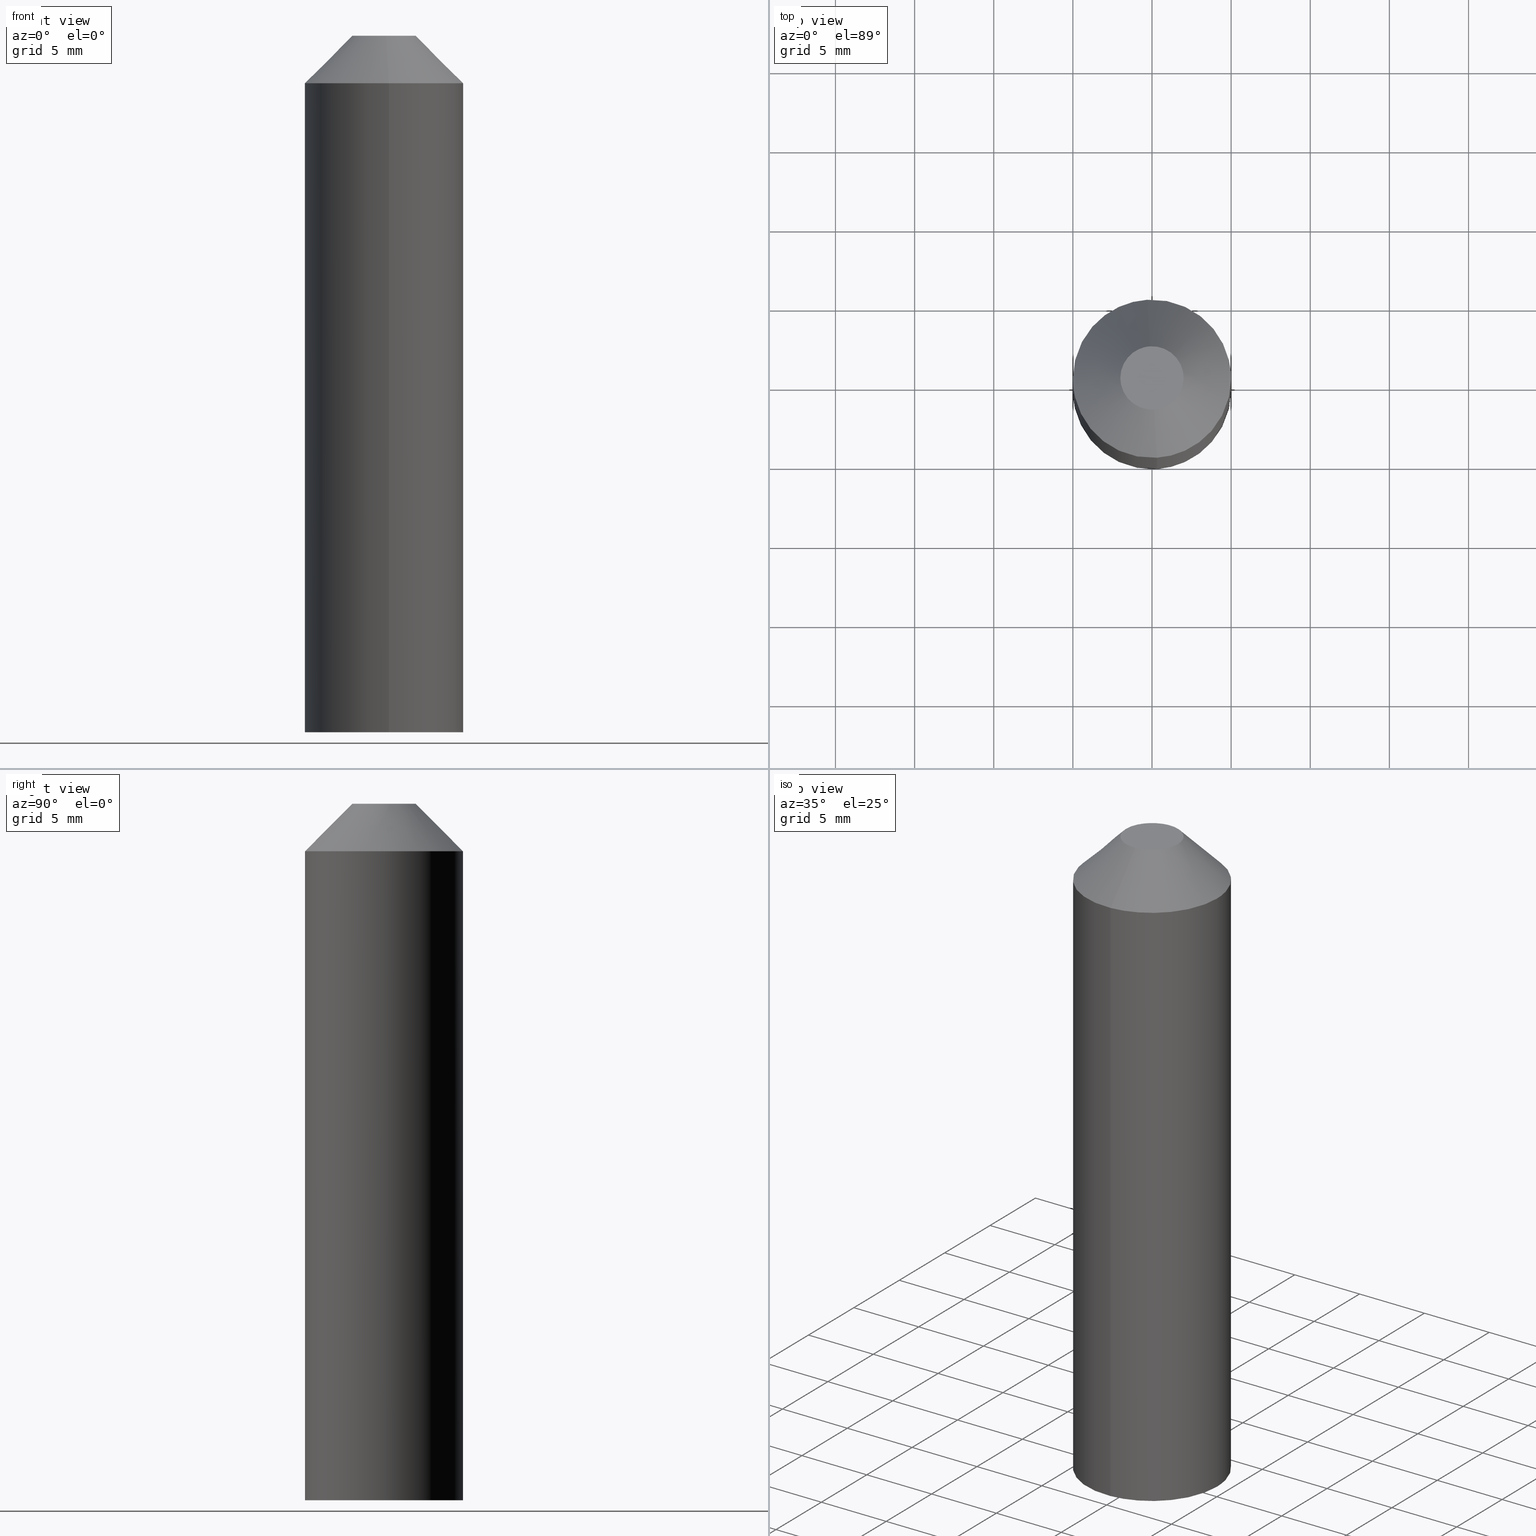
[diagram: canonical four-view strip — front | top / right | iso, engineering-drawing reading convention]
A machine part, canonical four-view strip (front | top / right | iso — engineering-drawing reading convention). The complete STEP part file that produces these views, byte-faithful:
ISO-10303-21;
HEADER;
/****************************************************************
 * Generated by software with PDE/Lib inside                    *
 * PDElib Version v5.1, created Sun 05/01/2005                  *
 * International Technegroup Inc. (www.iti-oh.com)              *
 ****************************************************************/
FILE_DESCRIPTION((''),'2;1');
FILE_NAME('','2007-04-02T16:51:42',(''),(''),'','CADfix','');
FILE_SCHEMA(('AUTOMOTIVE_DESIGN { 1 0 10303 214 1 1 1 1 }'));
ENDSEC;
DATA;
#5=CARTESIAN_POINT('',(2.199799992247224,-2.199750737069184,44.0));
#6=CARTESIAN_POINT('',(-2.199800099535584,-2.199750737069184,44.0));
#7=CARTESIAN_POINT('',(2.199799992247224,2.199750701306397,44.0));
#8=CARTESIAN_POINT('',(-2.199800099535584,2.199750701306397,44.0));
#9=B_SPLINE_SURFACE_WITH_KNOTS('',1,1,((#5,#7),(#6,#8)),.UNSPECIFIED.,.F.,.F.,.U.,(2,2),(2,2),(0.0,4.399600091782808),(0.0,4.399501438375581),.UNSPECIFIED.);
#10=CARTESIAN_POINT('',(0.122097079354286,-1.996269596863963,43.999999999962427));
#11=VERTEX_POINT('',#10);
#12=CARTESIAN_POINT('',(-2.0,0.0,44.0));
#13=VERTEX_POINT('',#12);
#14=CARTESIAN_POINT('',(0.122097079354286,-1.996269596863963,43.999999999962427));
#15=CARTESIAN_POINT('',(0.061105526740973,-2.000000000036956,43.999999999962967));
#16=CARTESIAN_POINT('',(2.224938E-012,-2.000000000036383,43.999999999963542));
#17=CARTESIAN_POINT('',(-1.999999999998922,-2.000000000017635,43.999999999982329));
#18=CARTESIAN_POINT('',(-2.0,0.0,44.0));
#26=(BOUNDED_CURVE()B_SPLINE_CURVE(2,(#14,#15,#16,#17,#18),.UNSPECIFIED.,.F.,.U.)B_SPLINE_CURVE_WITH_KNOTS((3,2,3),(0.739332962217570,0.750000000000000,1.0),.UNSPECIFIED.)CURVE()GEOMETRIC_REPRESENTATION_ITEM()RATIONAL_B_SPLINE_CURVE((0.976072041620911,0.987502787874797,1.0,0.707106781186548,1.0))REPRESENTATION_ITEM(''));
#27=EDGE_CURVE('',#11,#13,#26,.T.);
#28=ORIENTED_EDGE('',*,*,#27,.F.);
#29=CARTESIAN_POINT('',(2.0,0.0,44.0));
#30=VERTEX_POINT('',#29);
#31=CARTESIAN_POINT('',(2.0,0.0,44.0));
#32=CARTESIAN_POINT('',(2.000000000001146,-1.881412133563603,43.999999999981220));
#33=CARTESIAN_POINT('',(0.122097079354286,-1.996269596863963,43.999999999962427));
#41=(BOUNDED_CURVE()B_SPLINE_CURVE(2,(#31,#32,#33),.UNSPECIFIED.,.F.,.U.)B_SPLINE_CURVE_WITH_KNOTS((3,3),(0.500000000000000,0.739332962217570),.UNSPECIFIED.)CURVE()GEOMETRIC_REPRESENTATION_ITEM()RATIONAL_B_SPLINE_CURVE((1.0,0.719603993311751,0.976072041620911))REPRESENTATION_ITEM(''));
#42=EDGE_CURVE('',#30,#11,#41,.T.);
#43=ORIENTED_EDGE('',*,*,#42,.F.);
#44=CARTESIAN_POINT('',(-0.122097079354286,1.996269596863963,43.999999999962427));
#45=VERTEX_POINT('',#44);
#46=CARTESIAN_POINT('',(-0.122097079354286,1.996269596863963,43.999999999962427));
#47=CARTESIAN_POINT('',(-0.061105526740973,2.000000000036956,43.999999999962967));
#48=CARTESIAN_POINT('',(-2.225261E-012,2.000000000036383,43.999999999963549));
#49=CARTESIAN_POINT('',(1.999999999998921,2.000000000017635,43.999999999982329));
#50=CARTESIAN_POINT('',(2.0,0.0,44.0));
#58=(BOUNDED_CURVE()B_SPLINE_CURVE(2,(#46,#47,#48,#49,#50),.UNSPECIFIED.,.F.,.U.)B_SPLINE_CURVE_WITH_KNOTS((3,2,3),(0.239332962217570,0.250000000000000,0.500000000000000),.UNSPECIFIED.)CURVE()GEOMETRIC_REPRESENTATION_ITEM()RATIONAL_B_SPLINE_CURVE((0.976072041620911,0.987502787874797,1.0,0.707106781186548,1.0))REPRESENTATION_ITEM(''));
#59=EDGE_CURVE('',#45,#30,#58,.T.);
#60=ORIENTED_EDGE('',*,*,#59,.F.);
#61=CARTESIAN_POINT('',(-2.0,0.0,44.0));
#62=CARTESIAN_POINT('',(-2.000000000001146,1.881412133563603,43.999999999981220));
#63=CARTESIAN_POINT('',(-0.122097079354286,1.996269596863963,43.999999999962427));
#71=(BOUNDED_CURVE()B_SPLINE_CURVE(2,(#61,#62,#63),.UNSPECIFIED.,.F.,.U.)B_SPLINE_CURVE_WITH_KNOTS((3,3),(0.0,0.239332962217570),.UNSPECIFIED.)CURVE()GEOMETRIC_REPRESENTATION_ITEM()RATIONAL_B_SPLINE_CURVE((1.0,0.719603993311751,0.976072041620911))REPRESENTATION_ITEM(''));
#72=EDGE_CURVE('',#13,#45,#71,.T.);
#73=ORIENTED_EDGE('',*,*,#72,.F.);
#74=EDGE_LOOP('',(#28,#43,#60,#73));
#75=FACE_OUTER_BOUND('',#74,.T.);
#76=ADVANCED_FACE('',(#75),#9,.F.);
#77=CARTESIAN_POINT('',(-0.117518438604599,1.921409486962084,44.075000000000010));
#78=CARTESIAN_POINT('',(1.803891048357485,2.038927925566683,44.075000000000010));
#79=CARTESIAN_POINT('',(1.921409486962084,0.117518438604599,44.075000000000010));
#80=CARTESIAN_POINT('',(2.038927925566683,-1.803891048357485,44.075000000000010));
#81=CARTESIAN_POINT('',(0.117518438604599,-1.921409486962084,44.075000000000010));
#82=CARTESIAN_POINT('',(-0.309935804151027,5.067405604738020,40.923124999999992));
#83=CARTESIAN_POINT('',(4.757469800586993,5.377341408889047,40.923124999999992));
#84=CARTESIAN_POINT('',(5.067405604738020,0.309935804151027,40.923124999999992));
#85=CARTESIAN_POINT('',(5.377341408889047,-4.757469800586993,40.923124999999992));
#86=CARTESIAN_POINT('',(0.309935804151027,-5.067405604738020,40.923124999999992));
#94=(BOUNDED_SURFACE()B_SPLINE_SURFACE(2,1,((#77,#82),(#78,#83),(#79,#84),(#80,#85),(#81,#86)),.UNSPECIFIED.,.F.,.F.,.U.)B_SPLINE_SURFACE_WITH_KNOTS((3,2,3),(2,2),(0.0,8.411641917891634,16.823283835783268),(0.0,4.457424371904722),.UNSPECIFIED.)GEOMETRIC_REPRESENTATION_ITEM()RATIONAL_B_SPLINE_SURFACE(((1.0,1.0),(0.707106781186548,0.707106781186548),(1.0,1.0),(0.707106781186548,0.707106781186548),(1.0,1.0)))REPRESENTATION_ITEM('')SURFACE());
#95=CARTESIAN_POINT('',(-0.305242697718337,4.990673992112464,40.999999999988383));
#96=VERTEX_POINT('',#95);
#97=CARTESIAN_POINT('',(5.0,0.0,41.0));
#98=VERTEX_POINT('',#97);
#99=CARTESIAN_POINT('',(-0.305242697718337,4.990673992112465,40.999999999988383));
#100=CARTESIAN_POINT('',(-0.152763816494045,5.000000000008354,40.999999999988546));
#101=CARTESIAN_POINT('',(4.205639E-011,5.000000000008225,40.999999999988717));
#102=CARTESIAN_POINT('',(5.000000000020386,5.000000000003987,40.999999999994543));
#103=CARTESIAN_POINT('',(5.0,0.0,41.0));
#111=(BOUNDED_CURVE()B_SPLINE_CURVE(2,(#99,#100,#101,#102,#103),.UNSPECIFIED.,.F.,.U.)B_SPLINE_CURVE_WITH_KNOTS((3,2,3),(0.239332962238947,0.250000000000000,0.500000000000000),.UNSPECIFIED.)CURVE()GEOMETRIC_REPRESENTATION_ITEM()RATIONAL_B_SPLINE_CURVE((0.976072041666726,0.987502787899842,1.0,0.707106781186548,1.0))REPRESENTATION_ITEM(''));
#112=EDGE_CURVE('',#96,#98,#111,.T.);
#113=ORIENTED_EDGE('',*,*,#112,.F.);
#114=CARTESIAN_POINT('',(-0.122097079354286,1.996269596863963,43.999999999962427));
#115=CARTESIAN_POINT('',(-0.305242697762389,4.990673992115594,40.999999999988383));
#116=QUASI_UNIFORM_CURVE('',1,(#114,#115),.UNSPECIFIED.,.F.,.U.);
#117=EDGE_CURVE('',#45,#96,#116,.T.);
#118=ORIENTED_EDGE('',*,*,#117,.F.);
#119=ORIENTED_EDGE('',*,*,#59,.T.);
#120=ORIENTED_EDGE('',*,*,#42,.T.);
#121=CARTESIAN_POINT('',(0.305242697718337,-4.990673992112464,40.999999999988383));
#122=VERTEX_POINT('',#121);
#123=CARTESIAN_POINT('',(0.122097079354286,-1.996269596863963,43.999999999962427));
#124=CARTESIAN_POINT('',(0.305242697762388,-4.990673992115595,40.999999999988383));
#125=QUASI_UNIFORM_CURVE('',1,(#123,#124),.UNSPECIFIED.,.F.,.U.);
#126=EDGE_CURVE('',#11,#122,#125,.T.);
#127=ORIENTED_EDGE('',*,*,#126,.T.);
#128=CARTESIAN_POINT('',(5.0,0.0,41.0));
#129=CARTESIAN_POINT('',(4.999999999978329,-4.703530334450192,40.999999999994202));
#130=CARTESIAN_POINT('',(0.305242697718336,-4.990673992112466,40.999999999988376));
#138=(BOUNDED_CURVE()B_SPLINE_CURVE(2,(#128,#129,#130),.UNSPECIFIED.,.F.,.U.)B_SPLINE_CURVE_WITH_KNOTS((3,3),(0.500000000000000,0.739332962238947),.UNSPECIFIED.)CURVE()GEOMETRIC_REPRESENTATION_ITEM()RATIONAL_B_SPLINE_CURVE((1.0,0.719603993286706,0.976072041666726))REPRESENTATION_ITEM(''));
#139=EDGE_CURVE('',#98,#122,#138,.T.);
#140=ORIENTED_EDGE('',*,*,#139,.F.);
#141=EDGE_LOOP('',(#113,#118,#119,#120,#127,#140));
#142=FACE_OUTER_BOUND('',#141,.T.);
#143=ADVANCED_FACE('',(#142),#94,.T.);
#144=CARTESIAN_POINT('',(0.117518438604599,-1.921409486962084,44.075000000000010));
#145=CARTESIAN_POINT('',(-1.803891048357485,-2.038927925566683,44.075000000000010));
#146=CARTESIAN_POINT('',(-1.921409486962084,-0.117518438604599,44.075000000000010));
#147=CARTESIAN_POINT('',(-2.038927925566683,1.803891048357485,44.075000000000010));
#148=CARTESIAN_POINT('',(-0.117518438604599,1.921409486962084,44.075000000000010));
#149=CARTESIAN_POINT('',(0.309935804151027,-5.067405604738020,40.923124999999992));
#150=CARTESIAN_POINT('',(-4.757469800586993,-5.377341408889047,40.923124999999992));
#151=CARTESIAN_POINT('',(-5.067405604738020,-0.309935804151027,40.923124999999992));
#152=CARTESIAN_POINT('',(-5.377341408889047,4.757469800586993,40.923124999999992));
#153=CARTESIAN_POINT('',(-0.309935804151027,5.067405604738020,40.923124999999992));
#161=(BOUNDED_SURFACE()B_SPLINE_SURFACE(2,1,((#144,#149),(#145,#150),(#146,#151),(#147,#152),(#148,#153)),.UNSPECIFIED.,.F.,.F.,.U.)B_SPLINE_SURFACE_WITH_KNOTS((3,2,3),(2,2),(0.0,8.411641917891634,16.823283835783268),(0.0,4.457424371904722),.UNSPECIFIED.)GEOMETRIC_REPRESENTATION_ITEM()RATIONAL_B_SPLINE_SURFACE(((1.0,1.0),(0.707106781186548,0.707106781186548),(1.0,1.0),(0.707106781186548,0.707106781186548),(1.0,1.0)))REPRESENTATION_ITEM('')SURFACE());
#162=CARTESIAN_POINT('',(-5.0,0.0,41.0));
#163=VERTEX_POINT('',#162);
#164=CARTESIAN_POINT('',(-5.0,0.0,41.0));
#165=CARTESIAN_POINT('',(-4.999999999978329,4.703530334450193,40.999999999994188));
#166=CARTESIAN_POINT('',(-0.305242697718337,4.990673992112465,40.999999999988383));
#174=(BOUNDED_CURVE()B_SPLINE_CURVE(2,(#164,#165,#166),.UNSPECIFIED.,.F.,.U.)B_SPLINE_CURVE_WITH_KNOTS((3,3),(0.0,0.239332962238947),.UNSPECIFIED.)CURVE()GEOMETRIC_REPRESENTATION_ITEM()RATIONAL_B_SPLINE_CURVE((1.0,0.719603993286706,0.976072041666726))REPRESENTATION_ITEM(''));
#175=EDGE_CURVE('',#163,#96,#174,.T.);
#176=ORIENTED_EDGE('',*,*,#175,.F.);
#177=CARTESIAN_POINT('',(0.305242697718336,-4.990673992112466,40.999999999988376));
#178=CARTESIAN_POINT('',(0.152763816494045,-5.000000000008352,40.999999999988532));
#179=CARTESIAN_POINT('',(-4.205763E-011,-5.000000000008224,40.999999999988717));
#180=CARTESIAN_POINT('',(-5.000000000020386,-5.000000000003985,40.999999999994543));
#181=CARTESIAN_POINT('',(-5.0,0.0,41.0));
#189=(BOUNDED_CURVE()B_SPLINE_CURVE(2,(#177,#178,#179,#180,#181),.UNSPECIFIED.,.F.,.U.)B_SPLINE_CURVE_WITH_KNOTS((3,2,3),(0.739332962238947,0.750000000000000,1.0),.UNSPECIFIED.)CURVE()GEOMETRIC_REPRESENTATION_ITEM()RATIONAL_B_SPLINE_CURVE((0.976072041666726,0.987502787899842,1.0,0.707106781186548,1.0))REPRESENTATION_ITEM(''));
#190=EDGE_CURVE('',#122,#163,#189,.T.);
#191=ORIENTED_EDGE('',*,*,#190,.F.);
#192=ORIENTED_EDGE('',*,*,#126,.F.);
#193=ORIENTED_EDGE('',*,*,#27,.T.);
#194=ORIENTED_EDGE('',*,*,#72,.T.);
#195=ORIENTED_EDGE('',*,*,#117,.T.);
#196=EDGE_LOOP('',(#176,#191,#192,#193,#194,#195));
#197=FACE_OUTER_BOUND('',#196,.T.);
#198=ADVANCED_FACE('',(#197),#161,.T.);
#199=CARTESIAN_POINT('',(-4.344604984688267,-4.344507779871246,40.0));
#200=CARTESIAN_POINT('',(4.344605196582780,-4.344507779871246,40.0));
#201=CARTESIAN_POINT('',(-4.344604984688267,4.344507638608237,40.0));
#202=CARTESIAN_POINT('',(4.344605196582780,4.344507638608237,40.0));
#203=B_SPLINE_SURFACE_WITH_KNOTS('',1,1,((#199,#201),(#200,#202)),.UNSPECIFIED.,.F.,.F.,.U.,(2,2),(2,2),(0.0,8.689210181271047),(0.0,8.689015418479482),.UNSPECIFIED.);
#204=CARTESIAN_POINT('',(-3.950000000000000,0.0,40.0));
#205=VERTEX_POINT('',#204);
#206=CARTESIAN_POINT('',(-0.241135044313204,3.942632862740225,39.999999999999993));
#207=VERTEX_POINT('',#206);
#208=CARTESIAN_POINT('',(-3.950000000000000,0.0,40.0));
#209=CARTESIAN_POINT('',(-3.949999999999827,3.715795278170311,40.000000000000014));
#210=CARTESIAN_POINT('',(-0.241135044313204,3.942632862740226,39.999999999999979));
#218=(BOUNDED_CURVE()B_SPLINE_CURVE(2,(#208,#209,#210),.UNSPECIFIED.,.F.,.U.)B_SPLINE_CURVE_WITH_KNOTS((3,3),(0.0,0.239333254887726),.UNSPECIFIED.)CURVE()GEOMETRIC_REPRESENTATION_ITEM()RATIONAL_B_SPLINE_CURVE((1.0,0.719603650427333,0.976072668869571))REPRESENTATION_ITEM(''));
#219=EDGE_CURVE('',#205,#207,#218,.T.);
#220=ORIENTED_EDGE('',*,*,#219,.T.);
#221=CARTESIAN_POINT('',(3.950000000000000,0.0,40.0));
#222=VERTEX_POINT('',#221);
#223=CARTESIAN_POINT('',(-0.241135044313204,3.942632862740226,39.999999999999979));
#224=CARTESIAN_POINT('',(-0.120680062230140,3.949999999994410,39.999999999999986));
#225=CARTESIAN_POINT('',(3.368476E-013,3.949999999994498,39.999999999999993));
#226=CARTESIAN_POINT('',(3.950000000000164,3.949999999997333,40.0));
#227=CARTESIAN_POINT('',(3.950000000000000,0.0,40.0));
#235=(BOUNDED_CURVE()B_SPLINE_CURVE(2,(#223,#224,#225,#226,#227),.UNSPECIFIED.,.F.,.U.)B_SPLINE_CURVE_WITH_KNOTS((3,2,3),(0.239333254887726,0.250000000000000,0.500000000000000),.UNSPECIFIED.)CURVE()GEOMETRIC_REPRESENTATION_ITEM()RATIONAL_B_SPLINE_CURVE((0.976072668869571,0.987503130759214,1.0,0.707106781186547,1.0))REPRESENTATION_ITEM(''));
#236=EDGE_CURVE('',#207,#222,#235,.T.);
#237=ORIENTED_EDGE('',*,*,#236,.T.);
#238=CARTESIAN_POINT('',(0.241135044313204,-3.942632862740226,39.999999999999993));
#239=VERTEX_POINT('',#238);
#240=CARTESIAN_POINT('',(3.950000000000000,0.0,40.0));
#241=CARTESIAN_POINT('',(3.949999999999827,-3.715795278170309,39.999999999999993));
#242=CARTESIAN_POINT('',(0.241135044313204,-3.942632862740226,39.999999999999979));
#250=(BOUNDED_CURVE()B_SPLINE_CURVE(2,(#240,#241,#242),.UNSPECIFIED.,.F.,.U.)B_SPLINE_CURVE_WITH_KNOTS((3,3),(0.500000000000000,0.739333254887726),.UNSPECIFIED.)CURVE()GEOMETRIC_REPRESENTATION_ITEM()RATIONAL_B_SPLINE_CURVE((1.0,0.719603650427333,0.976072668869571))REPRESENTATION_ITEM(''));
#251=EDGE_CURVE('',#222,#239,#250,.T.);
#252=ORIENTED_EDGE('',*,*,#251,.T.);
#253=CARTESIAN_POINT('',(0.241135044313204,-3.942632862740226,39.999999999999979));
#254=CARTESIAN_POINT('',(0.120680062230140,-3.949999999994410,39.999999999999993));
#255=CARTESIAN_POINT('',(-3.377095E-013,-3.949999999994497,39.999999999999993));
#256=CARTESIAN_POINT('',(-3.950000000000164,-3.949999999997332,40.0));
#257=CARTESIAN_POINT('',(-3.950000000000000,0.0,40.0));
#265=(BOUNDED_CURVE()B_SPLINE_CURVE(2,(#253,#254,#255,#256,#257),.UNSPECIFIED.,.F.,.U.)B_SPLINE_CURVE_WITH_KNOTS((3,2,3),(0.739333254887726,0.750000000000000,1.0),.UNSPECIFIED.)CURVE()GEOMETRIC_REPRESENTATION_ITEM()RATIONAL_B_SPLINE_CURVE((0.976072668869571,0.987503130759214,1.0,0.707106781186547,1.0))REPRESENTATION_ITEM(''));
#266=EDGE_CURVE('',#239,#205,#265,.T.);
#267=ORIENTED_EDGE('',*,*,#266,.T.);
#268=EDGE_LOOP('',(#220,#237,#252,#267));
#269=FACE_OUTER_BOUND('',#268,.T.);
#270=ADVANCED_FACE('',(#269),#203,.F.);
#271=CARTESIAN_POINT('',(-0.305242697674285,4.990673992109334,42.025000000000013));
#272=CARTESIAN_POINT('',(4.685431294435048,5.295916689783620,42.025000000000013));
#273=CARTESIAN_POINT('',(4.990673992109334,0.305242697674285,42.025000000000013));
#274=CARTESIAN_POINT('',(5.295916689783620,-4.685431294435048,42.025000000000013));
#275=CARTESIAN_POINT('',(0.305242697674285,-4.990673992109334,42.025000000000013));
#276=CARTESIAN_POINT('',(-0.305242697674285,4.990673992109334,-1.050625000000117));
#277=CARTESIAN_POINT('',(4.685431294435048,5.295916689783620,-1.050625000000117));
#278=CARTESIAN_POINT('',(4.990673992109334,0.305242697674285,-1.050625000000117));
#279=CARTESIAN_POINT('',(5.295916689783620,-4.685431294435048,-1.050625000000117));
#280=CARTESIAN_POINT('',(0.305242697674285,-4.990673992109334,-1.050625000000117));
#288=(BOUNDED_SURFACE()B_SPLINE_SURFACE(2,1,((#271,#276),(#272,#277),(#273,#278),(#274,#279),(#275,#280)),.UNSPECIFIED.,.F.,.F.,.U.)B_SPLINE_SURFACE_WITH_KNOTS((3,2,3),(2,2),(0.0,8.284271247461899,16.568542494923800),(0.0,43.075625000000130),.UNSPECIFIED.)GEOMETRIC_REPRESENTATION_ITEM()RATIONAL_B_SPLINE_SURFACE(((1.0,1.0),(0.707106781186548,0.707106781186548),(1.0,1.0),(0.707106781186548,0.707106781186548),(1.0,1.0)))REPRESENTATION_ITEM('')SURFACE());
#289=CARTESIAN_POINT('',(-0.305242697700495,4.990673992107730,-1.134648E-013));
#290=VERTEX_POINT('',#289);
#291=CARTESIAN_POINT('',(-0.305242697718337,4.990673992112464,40.999999999988383));
#292=CARTESIAN_POINT('',(-0.305242697700495,4.990673992107730,-1.134648E-013));
#293=QUASI_UNIFORM_CURVE('',1,(#291,#292),.UNSPECIFIED.,.F.,.U.);
#294=EDGE_CURVE('',#96,#290,#293,.T.);
#295=ORIENTED_EDGE('',*,*,#294,.F.);
#296=ORIENTED_EDGE('',*,*,#112,.T.);
#297=ORIENTED_EDGE('',*,*,#139,.T.);
#298=CARTESIAN_POINT('',(0.305242697700496,-4.990673992107731,-1.133588E-013));
#299=VERTEX_POINT('',#298);
#300=CARTESIAN_POINT('',(0.305242697718337,-4.990673992112464,40.999999999988383));
#301=CARTESIAN_POINT('',(0.305242697700496,-4.990673992107731,-1.133588E-013));
#302=QUASI_UNIFORM_CURVE('',1,(#300,#301),.UNSPECIFIED.,.F.,.U.);
#303=EDGE_CURVE('',#122,#299,#302,.T.);
#304=ORIENTED_EDGE('',*,*,#303,.T.);
#305=CARTESIAN_POINT('',(5.0,0.0,0.0));
#306=VERTEX_POINT('',#305);
#307=CARTESIAN_POINT('',(5.0,0.0,0.0));
#308=CARTESIAN_POINT('',(5.0,-4.703530334503724,-1.069459E-013));
#309=CARTESIAN_POINT('',(0.305242697700497,-4.990673992107731,-1.134748E-013));
#317=(BOUNDED_CURVE()B_SPLINE_CURVE(2,(#307,#308,#309),.UNSPECIFIED.,.F.,.U.)B_SPLINE_CURVE_WITH_KNOTS((3,3),(0.500000000000000,0.739332962241062),.UNSPECIFIED.)CURVE()GEOMETRIC_REPRESENTATION_ITEM()RATIONAL_B_SPLINE_CURVE((1.0,0.719603993284227,0.976072041671259))REPRESENTATION_ITEM(''));
#318=EDGE_CURVE('',#306,#299,#317,.T.);
#319=ORIENTED_EDGE('',*,*,#318,.F.);
#320=CARTESIAN_POINT('',(-0.305242697700495,4.990673992107732,-1.136868E-013));
#321=CARTESIAN_POINT('',(-0.152763816506087,5.0,-1.136868E-013));
#322=CARTESIAN_POINT('',(0.0,5.0,-1.136868E-013));
#323=CARTESIAN_POINT('',(5.000000000000001,5.000000000000001,-1.136868E-013));
#324=CARTESIAN_POINT('',(5.0,0.0,-1.136868E-013));
#332=(BOUNDED_CURVE()B_SPLINE_CURVE(2,(#320,#321,#322,#323,#324),.UNSPECIFIED.,.F.,.U.)B_SPLINE_CURVE_WITH_KNOTS((3,2,3),(0.239332962241062,0.250000000000000,0.500000000000000),.UNSPECIFIED.)CURVE()GEOMETRIC_REPRESENTATION_ITEM()RATIONAL_B_SPLINE_CURVE((0.976072041671260,0.987502787902320,1.0,0.707106781186548,1.0))REPRESENTATION_ITEM(''));
#333=EDGE_CURVE('',#290,#306,#332,.T.);
#334=ORIENTED_EDGE('',*,*,#333,.F.);
#335=EDGE_LOOP('',(#295,#296,#297,#304,#319,#334));
#336=FACE_OUTER_BOUND('',#335,.T.);
#337=ADVANCED_FACE('',(#336),#288,.T.);
#338=CARTESIAN_POINT('',(0.305242697674285,-4.990673992109334,42.025000000000013));
#339=CARTESIAN_POINT('',(-4.685431294435048,-5.295916689783620,42.025000000000013));
#340=CARTESIAN_POINT('',(-4.990673992109334,-0.305242697674285,42.025000000000013));
#341=CARTESIAN_POINT('',(-5.295916689783620,4.685431294435048,42.025000000000013));
#342=CARTESIAN_POINT('',(-0.305242697674285,4.990673992109334,42.025000000000013));
#343=CARTESIAN_POINT('',(0.305242697674285,-4.990673992109334,-1.050625000000117));
#344=CARTESIAN_POINT('',(-4.685431294435048,-5.295916689783620,-1.050625000000117));
#345=CARTESIAN_POINT('',(-4.990673992109334,-0.305242697674285,-1.050625000000117));
#346=CARTESIAN_POINT('',(-5.295916689783620,4.685431294435048,-1.050625000000117));
#347=CARTESIAN_POINT('',(-0.305242697674285,4.990673992109334,-1.050625000000117));
#355=(BOUNDED_SURFACE()B_SPLINE_SURFACE(2,1,((#338,#343),(#339,#344),(#340,#345),(#341,#346),(#342,#347)),.UNSPECIFIED.,.F.,.F.,.U.)B_SPLINE_SURFACE_WITH_KNOTS((3,2,3),(2,2),(0.0,8.284271247461899,16.568542494923800),(0.0,43.075625000000130),.UNSPECIFIED.)GEOMETRIC_REPRESENTATION_ITEM()RATIONAL_B_SPLINE_SURFACE(((1.0,1.0),(0.707106781186548,0.707106781186548),(1.0,1.0),(0.707106781186548,0.707106781186548),(1.0,1.0)))REPRESENTATION_ITEM('')SURFACE());
#356=ORIENTED_EDGE('',*,*,#294,.T.);
#357=CARTESIAN_POINT('',(-5.0,0.0,-1.136868E-013));
#358=VERTEX_POINT('',#357);
#359=CARTESIAN_POINT('',(-5.0,0.0,-1.136868E-013));
#360=CARTESIAN_POINT('',(-4.999999999999998,4.703530334503726,-1.136868E-013));
#361=CARTESIAN_POINT('',(-0.305242697700495,4.990673992107732,-1.136868E-013));
#369=(BOUNDED_CURVE()B_SPLINE_CURVE(2,(#359,#360,#361),.UNSPECIFIED.,.F.,.U.)B_SPLINE_CURVE_WITH_KNOTS((3,3),(0.0,0.239332962241062),.UNSPECIFIED.)CURVE()GEOMETRIC_REPRESENTATION_ITEM()RATIONAL_B_SPLINE_CURVE((1.0,0.719603993284227,0.976072041671260))REPRESENTATION_ITEM(''));
#370=EDGE_CURVE('',#358,#290,#369,.T.);
#371=ORIENTED_EDGE('',*,*,#370,.F.);
#372=CARTESIAN_POINT('',(0.305242697700497,-4.990673992107731,-1.134748E-013));
#373=CARTESIAN_POINT('',(0.152763816506087,-4.999999999999999,-1.136868E-013));
#374=CARTESIAN_POINT('',(0.0,-5.0,-1.136868E-013));
#375=CARTESIAN_POINT('',(-5.000000000000001,-5.000000000000001,-1.136868E-013));
#376=CARTESIAN_POINT('',(-5.0,0.0,-1.136868E-013));
#384=(BOUNDED_CURVE()B_SPLINE_CURVE(2,(#372,#373,#374,#375,#376),.UNSPECIFIED.,.F.,.U.)B_SPLINE_CURVE_WITH_KNOTS((3,2,3),(0.739332962241062,0.750000000000000,1.0),.UNSPECIFIED.)CURVE()GEOMETRIC_REPRESENTATION_ITEM()RATIONAL_B_SPLINE_CURVE((0.976072041671259,0.987502787902320,1.0,0.707106781186548,1.0))REPRESENTATION_ITEM(''));
#385=EDGE_CURVE('',#299,#358,#384,.T.);
#386=ORIENTED_EDGE('',*,*,#385,.F.);
#387=ORIENTED_EDGE('',*,*,#303,.F.);
#388=ORIENTED_EDGE('',*,*,#190,.T.);
#389=ORIENTED_EDGE('',*,*,#175,.T.);
#390=EDGE_LOOP('',(#356,#371,#386,#387,#388,#389));
#391=FACE_OUTER_BOUND('',#390,.T.);
#392=ADVANCED_FACE('',(#391),#355,.T.);
#393=CARTESIAN_POINT('',(-0.241141731162685,3.942632453766374,41.000000000000007));
#394=CARTESIAN_POINT('',(3.701490722603688,4.183774184929058,41.000000000000014));
#395=CARTESIAN_POINT('',(3.942632453766374,0.241141731162685,41.000000000000007));
#396=CARTESIAN_POINT('',(4.183774184929058,-3.701490722603688,41.000000000000014));
#397=CARTESIAN_POINT('',(0.241141731162685,-3.942632453766374,41.000000000000007));
#398=CARTESIAN_POINT('',(-0.241141731162685,3.942632453766374,-1.024999999999999));
#399=CARTESIAN_POINT('',(3.701490722603688,4.183774184929058,-1.024999999999999));
#400=CARTESIAN_POINT('',(3.942632453766374,0.241141731162685,-1.024999999999999));
#401=CARTESIAN_POINT('',(4.183774184929058,-3.701490722603688,-1.024999999999999));
#402=CARTESIAN_POINT('',(0.241141731162685,-3.942632453766374,-1.024999999999999));
#410=(BOUNDED_SURFACE()B_SPLINE_SURFACE(2,1,((#393,#398),(#394,#399),(#395,#400),(#396,#401),(#397,#402)),.UNSPECIFIED.,.F.,.F.,.U.)B_SPLINE_SURFACE_WITH_KNOTS((3,2,3),(2,2),(0.0,6.544574285494901,13.089148570989799),(0.0,42.025000000000013),.UNSPECIFIED.)GEOMETRIC_REPRESENTATION_ITEM()RATIONAL_B_SPLINE_SURFACE(((1.0,1.0),(0.707106781186548,0.707106781186548),(1.0,1.0),(0.707106781186548,0.707106781186548),(1.0,1.0)))REPRESENTATION_ITEM('')SURFACE());
#411=ORIENTED_EDGE('',*,*,#236,.F.);
#412=CARTESIAN_POINT('',(-0.241135124748389,3.942632857820871,-1.054712E-015));
#413=VERTEX_POINT('',#412);
#414=CARTESIAN_POINT('',(-0.241135044313204,3.942632862740225,39.999999999999993));
#415=CARTESIAN_POINT('',(-0.241135124748389,3.942632857820871,-1.054712E-015));
#416=QUASI_UNIFORM_CURVE('',1,(#414,#415),.UNSPECIFIED.,.F.,.U.);
#417=EDGE_CURVE('',#207,#413,#416,.T.);
#418=ORIENTED_EDGE('',*,*,#417,.T.);
#419=CARTESIAN_POINT('',(3.950000000000000,0.0,0.0));
#420=VERTEX_POINT('',#419);
#421=CARTESIAN_POINT('',(-0.241135124748389,3.942632857820871,-1.054712E-015));
#422=CARTESIAN_POINT('',(-0.120680102560497,3.949999999994544,-1.039555E-015));
#423=CARTESIAN_POINT('',(3.282292E-013,3.949999999994629,-1.023444E-015));
#424=CARTESIAN_POINT('',(3.950000000000159,3.949999999997396,-4.960878E-016));
#425=CARTESIAN_POINT('',(3.950000000000000,0.0,0.0));
#433=(BOUNDED_CURVE()B_SPLINE_CURVE(2,(#421,#422,#423,#424,#425),.UNSPECIFIED.,.F.,.U.)B_SPLINE_CURVE_WITH_KNOTS((3,2,3),(0.239333251367531,0.250000000000000,0.500000000000000),.UNSPECIFIED.)CURVE()GEOMETRIC_REPRESENTATION_ITEM()RATIONAL_B_SPLINE_CURVE((0.976072661325102,0.987503126635048,1.0,0.707106781186547,1.0))REPRESENTATION_ITEM(''));
#434=EDGE_CURVE('',#413,#420,#433,.T.);
#435=ORIENTED_EDGE('',*,*,#434,.T.);
#436=CARTESIAN_POINT('',(0.241135124748389,-3.942632857820871,1.276756E-015));
#437=VERTEX_POINT('',#436);
#438=CARTESIAN_POINT('',(3.950000000000000,0.0,0.0));
#439=CARTESIAN_POINT('',(3.949999999999831,-3.715795202221353,6.383782E-016));
#440=CARTESIAN_POINT('',(0.241135124748389,-3.942632857820871,1.276756E-015));
#448=(BOUNDED_CURVE()B_SPLINE_CURVE(2,(#438,#439,#440),.UNSPECIFIED.,.F.,.U.)B_SPLINE_CURVE_WITH_KNOTS((3,3),(0.500000000000000,0.739333251367530),.UNSPECIFIED.)CURVE()GEOMETRIC_REPRESENTATION_ITEM()RATIONAL_B_SPLINE_CURVE((1.0,0.719603654551499,0.976072661325102))REPRESENTATION_ITEM(''));
#449=EDGE_CURVE('',#420,#437,#448,.T.);
#450=ORIENTED_EDGE('',*,*,#449,.T.);
#451=CARTESIAN_POINT('',(0.241135044313204,-3.942632862740226,39.999999999999993));
#452=CARTESIAN_POINT('',(0.241135124748389,-3.942632857820871,1.276756E-015));
#453=QUASI_UNIFORM_CURVE('',1,(#451,#452),.UNSPECIFIED.,.F.,.U.);
#454=EDGE_CURVE('',#239,#437,#453,.T.);
#455=ORIENTED_EDGE('',*,*,#454,.F.);
#456=ORIENTED_EDGE('',*,*,#251,.F.);
#457=EDGE_LOOP('',(#411,#418,#435,#450,#455,#456));
#458=FACE_OUTER_BOUND('',#457,.T.);
#459=ADVANCED_FACE('',(#458),#410,.F.);
#460=CARTESIAN_POINT('',(0.241141731162685,-3.942632453766374,41.000000000000007));
#461=CARTESIAN_POINT('',(-3.701490722603688,-4.183774184929058,41.000000000000014));
#462=CARTESIAN_POINT('',(-3.942632453766374,-0.241141731162685,41.000000000000007));
#463=CARTESIAN_POINT('',(-4.183774184929058,3.701490722603688,41.000000000000014));
#464=CARTESIAN_POINT('',(-0.241141731162685,3.942632453766374,41.000000000000007));
#465=CARTESIAN_POINT('',(0.241141731162685,-3.942632453766374,-1.024999999999999));
#466=CARTESIAN_POINT('',(-3.701490722603688,-4.183774184929058,-1.024999999999999));
#467=CARTESIAN_POINT('',(-3.942632453766374,-0.241141731162685,-1.024999999999999));
#468=CARTESIAN_POINT('',(-4.183774184929058,3.701490722603688,-1.024999999999999));
#469=CARTESIAN_POINT('',(-0.241141731162685,3.942632453766374,-1.024999999999999));
#477=(BOUNDED_SURFACE()B_SPLINE_SURFACE(2,1,((#460,#465),(#461,#466),(#462,#467),(#463,#468),(#464,#469)),.UNSPECIFIED.,.F.,.F.,.U.)B_SPLINE_SURFACE_WITH_KNOTS((3,2,3),(2,2),(0.0,6.544574285494901,13.089148570989799),(0.0,42.025000000000013),.UNSPECIFIED.)GEOMETRIC_REPRESENTATION_ITEM()RATIONAL_B_SPLINE_SURFACE(((1.0,1.0),(0.707106781186548,0.707106781186548),(1.0,1.0),(0.707106781186548,0.707106781186548),(1.0,1.0)))REPRESENTATION_ITEM('')SURFACE());
#478=ORIENTED_EDGE('',*,*,#219,.F.);
#479=ORIENTED_EDGE('',*,*,#266,.F.);
#480=ORIENTED_EDGE('',*,*,#454,.T.);
#481=CARTESIAN_POINT('',(-3.950000000000000,0.0,0.0));
#482=VERTEX_POINT('',#481);
#483=CARTESIAN_POINT('',(0.241135124748389,-3.942632857820871,1.276756E-015));
#484=CARTESIAN_POINT('',(0.120680102560497,-3.949999999994544,1.258409E-015));
#485=CARTESIAN_POINT('',(-3.280676E-013,-3.949999999994629,1.238906E-015));
#486=CARTESIAN_POINT('',(-3.950000000000159,-3.949999999997396,6.005273E-016));
#487=CARTESIAN_POINT('',(-3.950000000000000,0.0,0.0));
#495=(BOUNDED_CURVE()B_SPLINE_CURVE(2,(#483,#484,#485,#486,#487),.UNSPECIFIED.,.F.,.U.)B_SPLINE_CURVE_WITH_KNOTS((3,2,3),(0.739333251367530,0.750000000000000,1.0),.UNSPECIFIED.)CURVE()GEOMETRIC_REPRESENTATION_ITEM()RATIONAL_B_SPLINE_CURVE((0.976072661325102,0.987503126635048,1.0,0.707106781186547,1.0))REPRESENTATION_ITEM(''));
#496=EDGE_CURVE('',#437,#482,#495,.T.);
#497=ORIENTED_EDGE('',*,*,#496,.T.);
#498=CARTESIAN_POINT('',(-3.950000000000000,0.0,0.0));
#499=CARTESIAN_POINT('',(-3.949999999999831,3.715795202221351,-5.273559E-016));
#500=CARTESIAN_POINT('',(-0.241135124748389,3.942632857820871,-1.054712E-015));
#508=(BOUNDED_CURVE()B_SPLINE_CURVE(2,(#498,#499,#500),.UNSPECIFIED.,.F.,.U.)B_SPLINE_CURVE_WITH_KNOTS((3,3),(0.0,0.239333251367531),.UNSPECIFIED.)CURVE()GEOMETRIC_REPRESENTATION_ITEM()RATIONAL_B_SPLINE_CURVE((1.0,0.719603654551499,0.976072661325102))REPRESENTATION_ITEM(''));
#509=EDGE_CURVE('',#482,#413,#508,.T.);
#510=ORIENTED_EDGE('',*,*,#509,.T.);
#511=ORIENTED_EDGE('',*,*,#417,.F.);
#512=EDGE_LOOP('',(#478,#479,#480,#497,#510,#511));
#513=FACE_OUTER_BOUND('',#512,.T.);
#514=ADVANCED_FACE('',(#513),#477,.F.);
#515=CARTESIAN_POINT('',(-5.499499980618060,-5.499376936545926,-5.684342E-014));
#516=CARTESIAN_POINT('',(5.499500248838961,-5.499376936545926,-5.684342E-014));
#517=CARTESIAN_POINT('',(-5.499499980618060,5.499376757731992,-5.684342E-014));
#518=CARTESIAN_POINT('',(5.499500248838961,5.499376757731992,-5.684342E-014));
#519=B_SPLINE_SURFACE_WITH_KNOTS('',1,1,((#515,#517),(#516,#518)),.UNSPECIFIED.,.F.,.F.,.U.,(2,2),(2,2),(0.0,10.999000229457019),(0.0,10.998753694277919),.UNSPECIFIED.);
#520=ORIENTED_EDGE('',*,*,#370,.T.);
#521=ORIENTED_EDGE('',*,*,#333,.T.);
#522=ORIENTED_EDGE('',*,*,#318,.T.);
#523=ORIENTED_EDGE('',*,*,#385,.T.);
#524=EDGE_LOOP('',(#520,#521,#522,#523));
#525=FACE_OUTER_BOUND('',#524,.T.);
#526=ORIENTED_EDGE('',*,*,#449,.F.);
#527=ORIENTED_EDGE('',*,*,#434,.F.);
#528=ORIENTED_EDGE('',*,*,#509,.F.);
#529=ORIENTED_EDGE('',*,*,#496,.F.);
#530=EDGE_LOOP('',(#526,#527,#528,#529));
#531=FACE_BOUND('',#530,.T.);
#532=ADVANCED_FACE('',(#525,#531),#519,.F.);
#533=CLOSED_SHELL('',(#76,#143,#198,#270,#337,#392,#459,#514,#532));
#534=MANIFOLD_SOLID_BREP('cap',#533);
#540=(NAMED_UNIT(*)PLANE_ANGLE_UNIT()SI_UNIT($,.RADIAN.));
#541=DIMENSIONAL_EXPONENTS(0.0,0.0,0.0,0.0,0.0,0.0,0.0);
#542=PLANE_ANGLE_MEASURE_WITH_UNIT(PLANE_ANGLE_MEASURE(0.017453292500000),#540);
#546=(CONVERSION_BASED_UNIT('DEGREE',#542)NAMED_UNIT(#541)PLANE_ANGLE_UNIT());
#550=(NAMED_UNIT(*)SI_UNIT($,.STERADIAN.)SOLID_ANGLE_UNIT());
#554=(LENGTH_UNIT()NAMED_UNIT(*)SI_UNIT(.MILLI.,.METRE.));
#556=UNCERTAINTY_MEASURE_WITH_UNIT(LENGTH_MEASURE(0.001000000000000),#554,'DISTANCE_ACCURACY_VALUE','');
#558=(GEOMETRIC_REPRESENTATION_CONTEXT(3)GLOBAL_UNCERTAINTY_ASSIGNED_CONTEXT((#556))GLOBAL_UNIT_ASSIGNED_CONTEXT((#546,#550,#554))REPRESENTATION_CONTEXT('','3D'));
#559=ADVANCED_BREP_SHAPE_REPRESENTATION('',(#534),#558);
#560=APPLICATION_CONTEXT('automotive design');
#561=APPLICATION_PROTOCOL_DEFINITION('International Standard','automotive_design',2001,#560);
#562=PRODUCT_CONTEXT('',#560,'mechanical');
#563=PRODUCT('67109426','',$,(#562));
#564=PRODUCT_RELATED_PRODUCT_CATEGORY('part',$,(#563));
#565=PRODUCT_DEFINITION_FORMATION('',$,#563);
#566=PRODUCT_DEFINITION_CONTEXT('part definition',#560,'design');
#567=DOCUMENT_TYPE('cad_filename');
#568=DOCUMENT('67109431','step_model',$,#567);
#569=PRODUCT_DEFINITION_WITH_ASSOCIATED_DOCUMENTS('',$,#565,#566,(#568));
#570=PRODUCT_DEFINITION_SHAPE('',$,#569);
#571=SHAPE_DEFINITION_REPRESENTATION(#570,#559);
ENDSEC;
END-ISO-10303-21;
